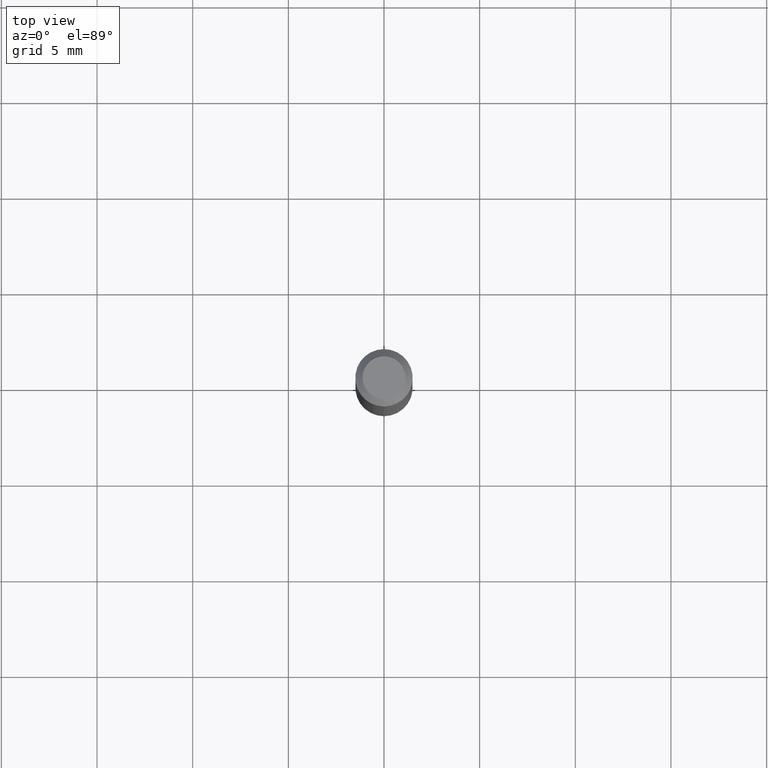
[diagram: clean part render]
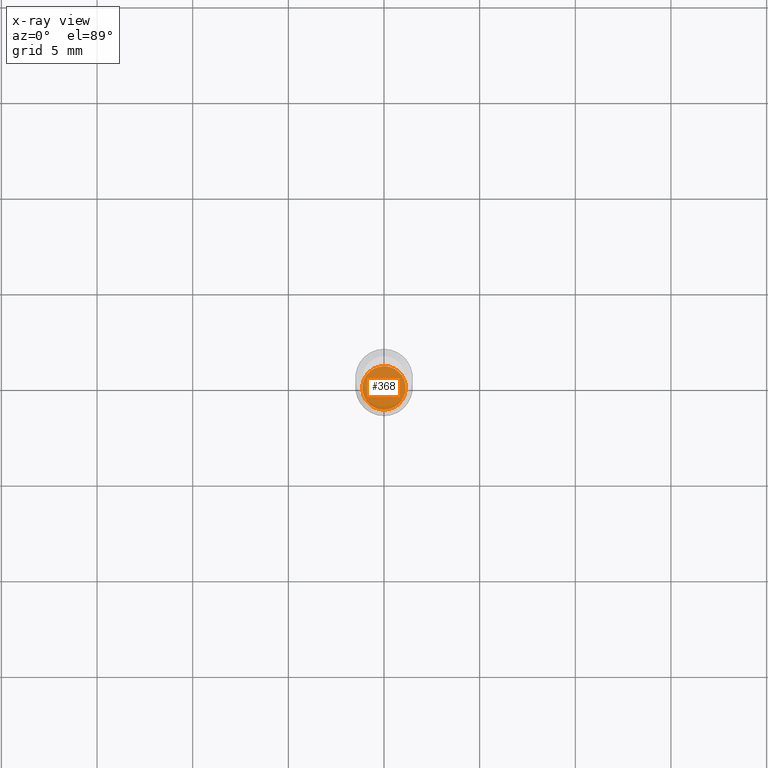
[diagram: x-ray — body ghosted, one internal face saturated and labeled with its STEP entity id]
A machine part, top view, then the same camera in x-ray: the body is ghosted and one INTERNAL B-rep face — a face not visible from any outside direction — is saturated and labeled: STEP entity #368.
In plain terms, the highlighted planar face has unit normal (-0, 0, 1).
Its self-contained STEP definition (entity closure, byte-faithful):
#95 = DIRECTION ( 'NONE',  ( -6.982962677686266711E-15, -1.000000000000000000, 3.048937492928865273E-15 ) ) ;
#110 = CARTESIAN_POINT ( 'NONE',  ( 3.200995024599552074E-16, 0.04479999999999572519, -1.224400000000000155 ) ) ;
#147 = VERTEX_POINT ( 'NONE', #157 ) ;
#151 = CIRCLE ( 'NONE', #373, 0.04479999999999999954 ) ;
#157 = CARTESIAN_POINT ( 'NONE',  ( -3.128367279603147534E-16, -0.04480000000000427390, -1.224399999999999711 ) ) ;
#215 = PLANE ( 'NONE',  #218 ) ;
#217 = DIRECTION ( 'NONE',  ( -6.982962677686265922E-15, -1.000000000000000000, 3.491583152107383980E-15 ) ) ;
#218 = AXIS2_PLACEMENT_3D ( 'NONE', #455, #421, #217 ) ;
#220 = CARTESIAN_POINT ( 'NONE',  ( 2.994144956568101133E-29, -4.275094411440280753E-15, -1.224399999999999933 ) ) ;
#222 = DIRECTION ( 'NONE',  ( -2.445397710362709294E-29, 3.491583152107384375E-15, 1.000000000000000000 ) ) ;
#235 = EDGE_CURVE ( 'NONE', #147, #461, #299, .T. ) ;
#286 = ORIENTED_EDGE ( 'NONE', *, *, #235, .F. ) ;
#295 = FACE_OUTER_BOUND ( 'NONE', #474, .T. ) ;
#299 = CIRCLE ( 'NONE', #453, 0.04479999999999999954 ) ;
#328 = EDGE_CURVE ( 'NONE', #461, #147, #151, .T. ) ;
#368 = ADVANCED_FACE ( 'NONE', ( #295 ), #215, .F. ) ;
#373 = AXIS2_PLACEMENT_3D ( 'NONE', #220, #491, #95 ) ;
#374 = CARTESIAN_POINT ( 'NONE',  ( 2.994144956568101133E-29, -4.275094411440280753E-15, -1.224399999999999933 ) ) ;
#421 = DIRECTION ( 'NONE',  ( -2.445397710362709294E-29, 3.491583152107383980E-15, 1.000000000000000000 ) ) ;
#451 = DIRECTION ( 'NONE',  ( -6.982962677686266711E-15, -1.000000000000000000, 3.048937492928865273E-15 ) ) ;
#453 = AXIS2_PLACEMENT_3D ( 'NONE', #374, #222, #451 ) ;
#455 = CARTESIAN_POINT ( 'NONE',  ( 2.994144956568101133E-29, -4.275094411440280753E-15, -1.224399999999999933 ) ) ;
#461 = VERTEX_POINT ( 'NONE', #110 ) ;
#474 = EDGE_LOOP ( 'NONE', ( #286, #512 ) ) ;
#491 = DIRECTION ( 'NONE',  ( -2.445397710362709294E-29, 3.491583152107384375E-15, 1.000000000000000000 ) ) ;
#512 = ORIENTED_EDGE ( 'NONE', *, *, #328, .F. ) ;